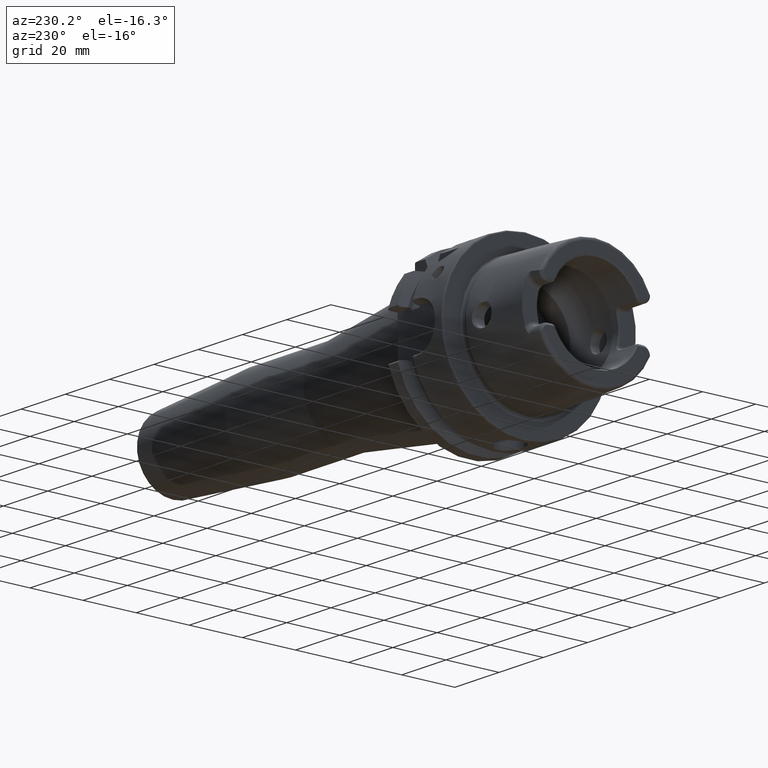
[diagram: clean part render]
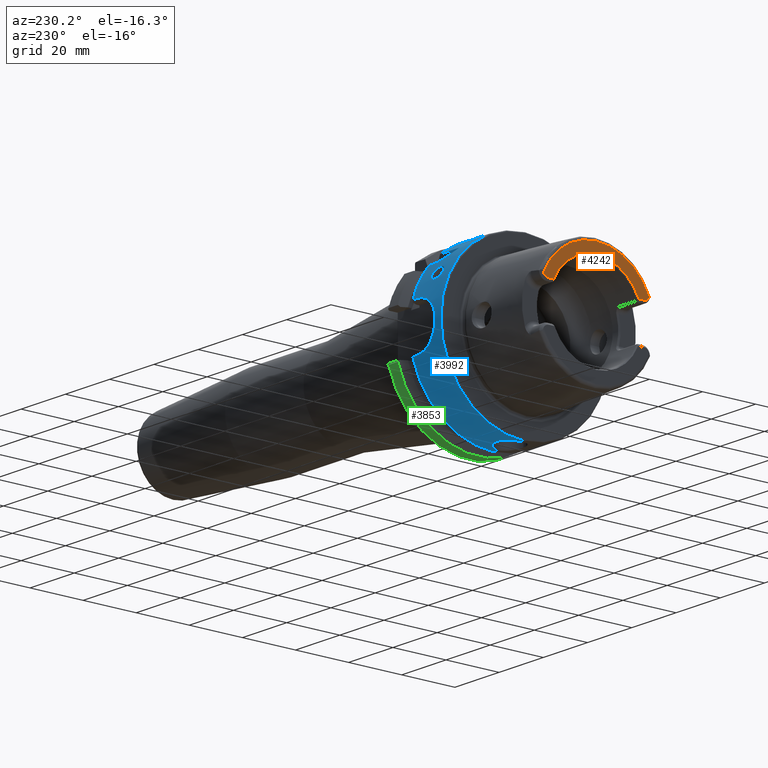
[diagram: same view with three faces highlighted in distinct colors, each labeled with its STEP entity id]
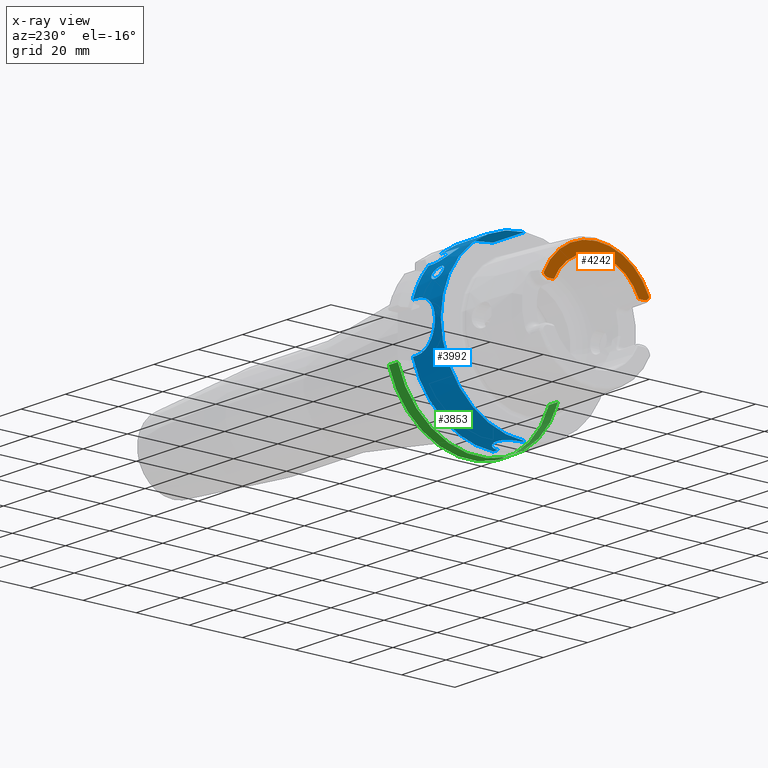
[diagram: x-ray of the same camera — body ghosted, the three highlighted faces saturated]
A machine part, auxiliary view with three faces highlighted in distinct colors.
The next image is the same camera in x-ray (body ghosted, the three faces saturated) — at least one of them is partly hidden behind the body in this view.
Their STEP definitions:

[orange] entity #4242 — the highlighted planar face has unit normal (1, 0, 0).
#1250=DIRECTION('',(0.E0,1.E0,0.E0));
#1251=VECTOR('',#1250,1.981717768605E0);
#1252=CARTESIAN_POINT('',(-3.2E1,1.600828223140E1,7.07E0));
#1253=LINE('',#1252,#1251);
#1254=CARTESIAN_POINT('',(-3.2E1,1.799E1,9.15E0));
#1255=DIRECTION('',(1.E0,0.E0,0.E0));
#1256=DIRECTION('',(0.E0,0.E0,-1.E0));
#1257=AXIS2_PLACEMENT_3D('',#1254,#1255,#1256);
#1259=CARTESIAN_POINT('',(-3.2E1,-1.799E1,9.15E0));
#1260=DIRECTION('',(-1.E0,0.E0,0.E0));
#1261=DIRECTION('',(0.E0,0.E0,-1.E0));
#1262=AXIS2_PLACEMENT_3D('',#1259,#1260,#1261);
#1264=DIRECTION('',(0.E0,-1.E0,0.E0));
#1265=VECTOR('',#1264,1.981717768605E0);
#1266=CARTESIAN_POINT('',(-3.2E1,-1.600828223140E1,7.07E0));
#1267=LINE('',#1266,#1265);
#1391=CARTESIAN_POINT('',(-3.2E1,0.E0,0.E0));
#1392=DIRECTION('',(-1.E0,0.E0,0.E0));
#1393=DIRECTION('',(0.E0,-9.224287428258E-1,3.861673399044E-1));
#1394=AXIS2_PLACEMENT_3D('',#1391,#1392,#1393);
#1626=CARTESIAN_POINT('',(-3.2E1,0.E0,-7.105427357601E-14));
#1627=DIRECTION('',(1.E0,0.E0,0.E0));
#1628=DIRECTION('',(0.E0,9.147589846511E-1,4.04E-1));
#1629=AXIS2_PLACEMENT_3D('',#1626,#1627,#1628);
#2786=CARTESIAN_POINT('',(-3.2E1,-1.600828223140E1,7.07E0));
#2787=CARTESIAN_POINT('',(-3.2E1,-1.799E1,7.07E0));
#2788=VERTEX_POINT('',#2786);
#2789=VERTEX_POINT('',#2787);
#2790=CARTESIAN_POINT('',(-3.2E1,-1.990238974402E1,8.331974653830E0));
#2791=VERTEX_POINT('',#2790);
#2815=CARTESIAN_POINT('',(-3.2E1,1.799E1,7.07E0));
#2817=VERTEX_POINT('',#2815);
#2822=CARTESIAN_POINT('',(-3.2E1,1.600828223140E1,7.07E0));
#2823=VERTEX_POINT('',#2822);
#2824=CARTESIAN_POINT('',(-3.2E1,1.990238974402E1,8.331974653830E0));
#2825=VERTEX_POINT('',#2824);
#4223=CARTESIAN_POINT('',(-3.2E1,0.E0,0.E0));
#4224=DIRECTION('',(1.E0,0.E0,0.E0));
#4225=DIRECTION('',(0.E0,0.E0,1.E0));
#4226=AXIS2_PLACEMENT_3D('',#4223,#4224,#4225);
#4227=PLANE('',#4226);
#4229=ORIENTED_EDGE('',*,*,#4228,.T.);
#4231=ORIENTED_EDGE('',*,*,#4230,.T.);
#4233=ORIENTED_EDGE('',*,*,#4232,.F.);
#4235=ORIENTED_EDGE('',*,*,#4234,.F.);
#4237=ORIENTED_EDGE('',*,*,#4236,.F.);
#4239=ORIENTED_EDGE('',*,*,#4238,.F.);
#4240=EDGE_LOOP('',(#4229,#4231,#4233,#4235,#4237,#4239));
#4241=FACE_OUTER_BOUND('',#4240,.F.);
#4242=ADVANCED_FACE('',(#4241),#4227,.F.);
#1258=CIRCLE('',#1257,2.08E0);
#1263=CIRCLE('',#1262,2.08E0);
#1395=CIRCLE('',#1394,2.157607283902E1);
#1630=CIRCLE('',#1629,1.75E1);
#4228=EDGE_CURVE('',#2823,#2817,#1253,.T.);
#4230=EDGE_CURVE('',#2817,#2825,#1258,.T.);
#4232=EDGE_CURVE('',#2791,#2825,#1395,.T.);
#4234=EDGE_CURVE('',#2789,#2791,#1263,.T.);
#4236=EDGE_CURVE('',#2788,#2789,#1267,.T.);
#4238=EDGE_CURVE('',#2823,#2788,#1630,.T.);

[blue] entity #3992 — the highlighted cylindrical surface (partial cylindrical patch) has radius 31.5 mm, axis along (1, 0, 0).
#747=DIRECTION('',(-1.E0,-1.152697855394E-12,0.E0));
#748=VECTOR('',#747,1.412250090457E1);
#749=CARTESIAN_POINT('',(1.462250090457E1,0.E0,3.15E1));
#750=LINE('',#749,#748);
#806=DIRECTION('',(-1.E0,0.E0,0.E0));
#807=VECTOR('',#806,2.122500904567E0);
#808=CARTESIAN_POINT('',(1.462250090457E1,0.E0,-3.15E1));
#809=LINE('',#808,#807);
#830=DIRECTION('',(-1.E0,-3.500326402276E-12,0.E0));
#831=VECTOR('',#830,1.E0);
#832=CARTESIAN_POINT('',(1.5E0,0.E0,-3.15E1));
#833=LINE('',#832,#831);
#847=CARTESIAN_POINT('',(5.E-1,0.E0,0.E0));
#848=DIRECTION('',(-1.E0,0.E0,0.E0));
#849=DIRECTION('',(0.E0,0.E0,1.E0));
#850=AXIS2_PLACEMENT_3D('',#847,#848,#849);
#852=CARTESIAN_POINT('',(1.25E1,0.E0,-3.15E1));
#853=CARTESIAN_POINT('',(1.25E1,3.591179016958E-1,-3.15E1));
#854=CARTESIAN_POINT('',(1.241877060514E1,1.049176716839E0,-3.148780969961E1));
#855=CARTESIAN_POINT('',(1.208888151745E1,2.007789554012E0,-3.144033464909E1));
#856=CARTESIAN_POINT('',(1.158303499725E1,2.863034778919E0,-3.137310892711E1));
#857=CARTESIAN_POINT('',(1.090471174494E1,3.623449915998E0,-3.129357789396E1));
#858=CARTESIAN_POINT('',(1.006459553458E1,4.261252464667E0,-3.121215533395E1));
#859=CARTESIAN_POINT('',(9.088026015445E0,4.740243014212E0,-3.114207085875E1));
#860=CARTESIAN_POINT('',(8.055144265708E0,5.024239826024E0,-3.109689332850E1));
#861=CARTESIAN_POINT('',(6.991255526220E0,5.118492193282E0,-3.108133183436E1));
#862=CARTESIAN_POINT('',(5.929304176130E0,5.021338939589E0,-3.109736870211E1));
#863=CARTESIAN_POINT('',(4.897654838810E0,4.734729497616E0,-3.114291627253E1));
#864=CARTESIAN_POINT('',(3.923322314250E0,4.253904907756E0,-3.121317796639E1));
#865=CARTESIAN_POINT('',(3.081999010349E0,3.611475324829E0,-3.129499592086E1));
#866=CARTESIAN_POINT('',(2.405524185626E0,2.847462453288E0,-3.137455446046E1));
#867=CARTESIAN_POINT('',(1.903178736620E0,1.990202842849E0,-3.144144823364E1));
#868=CARTESIAN_POINT('',(1.578888425808E0,1.035924841317E0,-3.148816306394E1));
#869=CARTESIAN_POINT('',(1.5E0,3.538898695661E-1,-3.15E1));
#870=CARTESIAN_POINT('',(1.5E0,0.E0,-3.15E1));
#872=CARTESIAN_POINT('',(1.462250090457E1,0.E0,0.E0));
#873=DIRECTION('',(1.E0,0.E0,0.E0));
#874=DIRECTION('',(0.E0,0.E0,-1.E0));
#875=AXIS2_PLACEMENT_3D('',#872,#873,#874);
#877=DIRECTION('',(1.E0,0.E0,0.E0));
#878=VECTOR('',#877,1.622500904567E0);
#879=CARTESIAN_POINT('',(1.3E1,3.030257052423E1,-8.602570524226E0));
#880=LINE('',#879,#878);
#881=CARTESIAN_POINT('',(1.3E1,3.030257052423E1,-8.602570524226E0));
#882=CARTESIAN_POINT('',(1.235541835287E1,3.030257052423E1,-8.602570524226E0));
#883=CARTESIAN_POINT('',(1.109372968304E1,3.033423153458E1,-8.492196080456E0));
#884=CARTESIAN_POINT('',(9.248264611222E0,3.046933517118E1,-8.000909647176E0));
#885=CARTESIAN_POINT('',(7.555884268441E0,3.066964465669E1,-7.205952655409E0));
#886=CARTESIAN_POINT('',(6.088763746981E0,3.090017764345E1,-6.155508171550E0));
#887=CARTESIAN_POINT('',(4.907613818030E0,3.112281076593E1,-4.919449967846E0));
#888=CARTESIAN_POINT('',(4.035296228860E0,3.130752418742E1,-3.569140413675E0));
#889=CARTESIAN_POINT('',(3.467126615443E0,3.143679507039E1,-2.158791178254E0));
#890=CARTESIAN_POINT('',(3.188348549717E0,3.150274417315E1,-7.219689524247E-1));
#891=CARTESIAN_POINT('',(3.188351309952E0,3.150274350794E1,7.219960352426E-1));
#892=CARTESIAN_POINT('',(3.467133324851E0,3.143679352027E1,2.158810680109E0));
#893=CARTESIAN_POINT('',(4.035299491244E0,3.130752347964E1,3.569145798460E0));
#894=CARTESIAN_POINT('',(4.907619317801E0,3.112280964165E1,4.919457341111E0));
#895=CARTESIAN_POINT('',(6.088770538561E0,3.090017648968E1,6.155513669787E0));
#896=CARTESIAN_POINT('',(7.555887404237E0,3.066964426780E1,7.205954206590E0));
#897=CARTESIAN_POINT('',(9.248266760131E0,3.046933495101E1,8.000910488809E0));
#898=CARTESIAN_POINT('',(1.109373293521E1,3.033423138205E1,8.492196614850E0));
#899=CARTESIAN_POINT('',(1.235541965801E1,3.030257052423E1,8.602570524226E0));
#900=CARTESIAN_POINT('',(1.3E1,3.030257052423E1,8.602570524226E0));
#902=DIRECTION('',(1.E0,0.E0,0.E0));
#903=VECTOR('',#902,1.622500904567E0);
#904=CARTESIAN_POINT('',(1.3E1,3.030257052423E1,8.602570524226E0));
#905=LINE('',#904,#903);
#906=CARTESIAN_POINT('',(1.462250090457E1,0.E0,0.E0));
#907=DIRECTION('',(1.E0,0.E0,0.E0));
#908=DIRECTION('',(0.E0,9.619863658485E-1,2.730974769596E-1));
#909=AXIS2_PLACEMENT_3D('',#906,#907,#908);
#911=DIRECTION('',(1.E0,0.E0,0.E0));
#912=VECTOR('',#911,1.622500904567E0);
#913=CARTESIAN_POINT('',(1.3E1,2.433618704728E1,2.E1));
#914=LINE('',#913,#912);
#915=CARTESIAN_POINT('',(5.888286096344E0,2.E1,2.433618704728E1));
#916=CARTESIAN_POINT('',(5.979841110901E0,2.021624479285E1,2.415847244274E1));
#917=CARTESIAN_POINT('',(6.178964055433E0,2.063505528873E1,2.380463264103E1));
#918=CARTESIAN_POINT('',(6.529290349012E0,2.122336114799E1,2.328123619400E1));
#919=CARTESIAN_POINT('',(6.934185786704E0,2.177041926319E1,2.277004743860E1));
#920=CARTESIAN_POINT('',(7.395470581921E0,2.227363444044E1,2.227755184076E1));
#921=CARTESIAN_POINT('',(7.915511267172E0,2.273117164906E1,2.180996325233E1));
#922=CARTESIAN_POINT('',(8.494651142790E0,2.313957745525E1,2.137559509570E1));
#923=CARTESIAN_POINT('',(9.133373456560E0,2.349590004479E1,2.098269866103E1));
#924=CARTESIAN_POINT('',(9.827602999986E0,2.379530983774E1,2.064193255373E1));
#925=CARTESIAN_POINT('',(1.057250362730E1,2.403390563889E1,2.036307977068E1));
#926=CARTESIAN_POINT('',(1.135757184338E1,2.420737036833E1,2.015610491514E1));
#927=CARTESIAN_POINT('',(1.217313527813E1,2.431273139834E1,2.002859294578E1));
#928=CARTESIAN_POINT('',(1.272260838370E1,2.433618704728E1,2.E1));
#929=CARTESIAN_POINT('',(1.3E1,2.433618704728E1,2.E1));
#931=DIRECTION('',(1.E0,0.E0,0.E0));
#932=VECTOR('',#931,8.734214808223E0);
#933=CARTESIAN_POINT('',(5.888286096344E0,2.E1,2.433618704728E1));
#934=LINE('',#933,#932);
#935=CARTESIAN_POINT('',(1.462250090457E1,0.E0,0.E0));
#936=DIRECTION('',(1.E0,0.E0,0.E0));
#937=DIRECTION('',(0.E0,6.349206349206E-1,7.725773665802E-1));
#938=AXIS2_PLACEMENT_3D('',#935,#936,#937);
#940=CARTESIAN_POINT('',(7.E0,1.048792601377E1,2.970275084785E1));
#941=CARTESIAN_POINT('',(6.802284525844E0,1.048792601377E1,2.970275084785E1));
#942=CARTESIAN_POINT('',(6.415956362855E0,1.053000828392E1,2.968795788573E1));
#943=CARTESIAN_POINT('',(5.835520236530E0,1.073329285939E1,2.961539446600E1));
#944=CARTESIAN_POINT('',(5.338865174867E0,1.105313070426E1,2.949799642861E1));
#945=CARTESIAN_POINT('',(4.933147778579E0,1.147607742680E1,2.933648695426E1));
#946=CARTESIAN_POINT('',(4.650970895156E0,1.196336414671E1,2.914163101280E1));
#947=CARTESIAN_POINT('',(4.497318778306E0,1.251103674698E1,2.891098269294E1));
#948=CARTESIAN_POINT('',(4.489867977867E0,1.306055214852E1,2.866698467963E1));
#949=CARTESIAN_POINT('',(4.632528901150E0,1.361030093004E1,2.840989978286E1));
#950=CARTESIAN_POINT('',(4.911239559409E0,1.409536526788E1,2.817188938195E1));
#951=CARTESIAN_POINT('',(5.318335564972E0,1.450994163974E1,2.796011300701E1));
#952=CARTESIAN_POINT('',(5.817706515600E0,1.481904178764E1,2.779698994859E1));
#953=CARTESIAN_POINT('',(6.407436795489E0,1.501546414401E1,2.769101327978E1));
#954=CARTESIAN_POINT('',(6.799276851427E0,1.505565330198E1,2.766906763247E1));
#955=CARTESIAN_POINT('',(7.E0,1.505565330198E1,2.766906763247E1));
#957=CARTESIAN_POINT('',(7.E0,1.505565330198E1,2.766906763247E1));
#958=CARTESIAN_POINT('',(7.216758209596E0,1.505565330198E1,2.766906763247E1));
#959=CARTESIAN_POINT('',(7.638088338046E0,1.500779870639E1,2.769518275357E1));
#960=CARTESIAN_POINT('',(8.254145299815E0,1.478880460707E1,2.781326796640E1));
#961=CARTESIAN_POINT('',(8.792406388011E0,1.442264801340E1,2.800557112396E1));
#962=CARTESIAN_POINT('',(9.190984559259E0,1.395502564772E1,2.824208031562E1));
#963=CARTESIAN_POINT('',(9.442403111712E0,1.340849415034E1,2.850610422381E1));
#964=CARTESIAN_POINT('',(9.528471297477E0,1.281403684970E1,2.877838375227E1));
#965=CARTESIAN_POINT('',(9.443708466172E0,1.221757970337E1,2.903644683210E1));
#966=CARTESIAN_POINT('',(9.193934997278E0,1.165486776358E1,2.926640933960E1));
#967=CARTESIAN_POINT('',(8.796093757839E0,1.116470616185E1,2.945632212539E1));
#968=CARTESIAN_POINT('',(8.254947878404E0,1.077379544614E1,2.960088540165E1));
#969=CARTESIAN_POINT('',(7.638227494305E0,1.053939599961E1,2.968464561730E1));
#970=CARTESIAN_POINT('',(7.216695711763E0,1.048792601377E1,2.970275084785E1));
#971=CARTESIAN_POINT('',(7.E0,1.048792601377E1,2.970275084785E1));
#973=CARTESIAN_POINT('',(7.E0,2.594374928177E1,1.786538197757E1));
#974=CARTESIAN_POINT('',(6.802284525844E0,2.594374928177E1,1.786538197757E1));
#975=CARTESIAN_POINT('',(6.415956362855E0,2.596909946851E1,1.782867888203E1));
#976=CARTESIAN_POINT('',(5.835520236530E0,2.609090843678E1,1.765048616683E1));
#977=CARTESIAN_POINT('',(5.338865174867E0,2.628065785371E1,1.736751319113E1));
#978=CARTESIAN_POINT('',(4.933147778579E0,2.652789605283E1,1.698824743562E1));
#979=CARTESIAN_POINT('',(4.650970895156E0,2.680758584166E1,1.654418571992E1));
#980=CARTESIAN_POINT('',(4.497318778306E0,2.711509060175E1,1.603567343191E1));
#981=CARTESIAN_POINT('',(4.489867977867E0,2.741623946645E1,1.551527784361E1));
#982=CARTESIAN_POINT('',(4.632528901150E0,2.770988486243E1,1.498415756688E1));
#983=CARTESIAN_POINT('',(4.911239559409E0,2.796241115156E1,1.450648944351E1));
#984=CARTESIAN_POINT('',(5.318335564972E0,2.817333145190E1,1.409147687985E1));
#985=CARTESIAN_POINT('',(5.817706515600E0,2.832751739645E1,1.377782304500E1));
#986=CARTESIAN_POINT('',(6.407436795489E0,2.842413489782E1,1.357663195463E1));
#987=CARTESIAN_POINT('',(6.799276851427E0,2.844374928177E1,1.353525495865E1));
#988=CARTESIAN_POINT('',(7.E0,2.844374928177E1,1.353525495865E1));
#990=CARTESIAN_POINT('',(7.E0,2.844374928177E1,1.353525495865E1));
#991=CARTESIAN_POINT('',(7.216758209596E0,2.844374928177E1,1.353525495865E1));
#992=CARTESIAN_POINT('',(7.638088338046E0,2.842038418372E1,1.358451076097E1));
#993=CARTESIAN_POINT('',(8.254145299815E0,2.831262298232E1,1.380876520685E1));
#994=CARTESIAN_POINT('',(8.792406388011E0,2.812942903542E1,1.417956317518E1));
#995=CARTESIAN_POINT('',(9.190984559259E0,2.789013120952E1,1.464576466074E1));
#996=CARTESIAN_POINT('',(9.442403111712E0,2.760316729966E1,1.518060764346E1));
#997=CARTESIAN_POINT('',(9.528471297477E0,2.728228313235E1,1.575029964364E1));
#998=CARTESIAN_POINT('',(9.443708466172E0,2.695142483705E1,1.630966577509E1));
#999=CARTESIAN_POINT('',(9.193934997278E0,2.663134988530E1,1.682646313122E1));
#1000=CARTESIAN_POINT('',(8.796093757839E0,2.634642875422E1,1.726821556311E1));
#1001=CARTESIAN_POINT('',(8.254947878404E0,2.611514750374E1,1.761494126403E1));
#1002=CARTESIAN_POINT('',(7.638227494305E0,2.597474738751E1,1.782048123975E1));
#1003=CARTESIAN_POINT('',(7.216695711763E0,2.594374928177E1,1.786538197757E1));
#1004=CARTESIAN_POINT('',(7.E0,2.594374928177E1,1.786538197757E1));
#2679=CARTESIAN_POINT('',(5.888286096344E0,2.E1,2.433618704728E1));
#2680=CARTESIAN_POINT('',(1.462250090457E1,2.E1,2.433618704728E1));
#2681=VERTEX_POINT('',#2679);
#2682=VERTEX_POINT('',#2680);
#2683=CARTESIAN_POINT('',(1.3E1,2.433618704728E1,2.E1));
#2684=CARTESIAN_POINT('',(1.462250090457E1,2.433618704728E1,2.E1));
#2685=VERTEX_POINT('',#2683);
#2686=VERTEX_POINT('',#2684);
#2699=CARTESIAN_POINT('',(1.462250090457E1,0.E0,3.15E1));
#2700=VERTEX_POINT('',#2699);
#2842=VERTEX_POINT('',#852);
#2843=VERTEX_POINT('',#870);
#2852=CARTESIAN_POINT('',(1.462250090457E1,0.E0,-3.15E1));
#2853=VERTEX_POINT('',#2852);
#2899=CARTESIAN_POINT('',(1.3E1,3.030257052423E1,8.602570524226E0));
#2900=CARTESIAN_POINT('',(1.462250090457E1,3.030257052423E1,8.602570524226E0));
#2901=VERTEX_POINT('',#2899);
#2902=VERTEX_POINT('',#2900);
#2903=VERTEX_POINT('',#881);
#2904=CARTESIAN_POINT('',(1.462250090457E1,3.030257052423E1,-8.602570524226E0));
#2905=VERTEX_POINT('',#2904);
#2924=CARTESIAN_POINT('',(5.E-1,0.E0,3.15E1));
#2925=CARTESIAN_POINT('',(5.E-1,0.E0,-3.15E1));
#2926=VERTEX_POINT('',#2924);
#2927=VERTEX_POINT('',#2925);
#2948=VERTEX_POINT('',#940);
#2949=VERTEX_POINT('',#955);
#2956=VERTEX_POINT('',#973);
#2957=VERTEX_POINT('',#988);
#3949=CARTESIAN_POINT('',(0.E0,0.E0,0.E0));
#3950=DIRECTION('',(1.E0,0.E0,0.E0));
#3951=DIRECTION('',(0.E0,0.E0,1.E0));
#3952=AXIS2_PLACEMENT_3D('',#3949,#3950,#3951);
#3953=CYLINDRICAL_SURFACE('',#3952,3.15E1);
#3955=ORIENTED_EDGE('',*,*,#3954,.T.);
#3956=ORIENTED_EDGE('',*,*,#3913,.F.);
#3958=ORIENTED_EDGE('',*,*,#3957,.F.);
#3959=ORIENTED_EDGE('',*,*,#3909,.F.);
#3961=ORIENTED_EDGE('',*,*,#3960,.T.);
#3962=ORIENTED_EDGE('',*,*,#3923,.F.);
#3964=ORIENTED_EDGE('',*,*,#3963,.T.);
#3966=ORIENTED_EDGE('',*,*,#3965,.T.);
#3968=ORIENTED_EDGE('',*,*,#3967,.T.);
#3970=ORIENTED_EDGE('',*,*,#3969,.F.);
#3972=ORIENTED_EDGE('',*,*,#3971,.F.);
#3974=ORIENTED_EDGE('',*,*,#3973,.T.);
#3976=ORIENTED_EDGE('',*,*,#3975,.T.);
#3977=ORIENTED_EDGE('',*,*,#3893,.T.);
#3978=EDGE_LOOP('',(#3955,#3956,#3958,#3959,#3961,#3962,#3964,#3966,#3968,#3970,
#3972,#3974,#3976,#3977));
#3979=FACE_OUTER_BOUND('',#3978,.F.);
#3981=ORIENTED_EDGE('',*,*,#3980,.F.);
#3983=ORIENTED_EDGE('',*,*,#3982,.F.);
#3984=EDGE_LOOP('',(#3981,#3983));
#3985=FACE_BOUND('',#3984,.F.);
#3987=ORIENTED_EDGE('',*,*,#3986,.F.);
#3989=ORIENTED_EDGE('',*,*,#3988,.F.);
#3990=EDGE_LOOP('',(#3987,#3989));
#3991=FACE_BOUND('',#3990,.F.);
#3992=ADVANCED_FACE('',(#3979,#3985,#3991),#3953,.T.);
#851=CIRCLE('',#850,3.15E1);
#871=B_SPLINE_CURVE_WITH_KNOTS('',3,(#852,#853,#854,#855,#856,#857,#858,#859,
#860,#861,#862,#863,#864,#865,#866,#867,#868,#869,#870),.UNSPECIFIED.,.F.,.F.,
(4,1,1,1,1,1,1,1,1,1,1,1,1,1,1,1,4),(0.E0,6.25E-2,1.25E-1,1.875E-1,2.5E-1,
3.125E-1,3.75E-1,4.375E-1,5.E-1,5.625E-1,6.25E-1,6.875E-1,7.5E-1,8.125E-1,
8.75E-1,9.375E-1,1.E0),.UNSPECIFIED.);
#876=CIRCLE('',#875,3.15E1);
#901=B_SPLINE_CURVE_WITH_KNOTS('',3,(#881,#882,#883,#884,#885,#886,#887,#888,
#889,#890,#891,#892,#893,#894,#895,#896,#897,#898,#899,#900),.UNSPECIFIED.,.F.,
.F.,(4,1,1,1,1,1,1,1,1,1,1,1,1,1,1,1,1,4),(0.E0,5.882352941176E-2,
1.176470588235E-1,1.764705882353E-1,2.352941176471E-1,2.941176470588E-1,
3.529411764706E-1,4.117647058824E-1,4.705882352941E-1,5.294117647059E-1,
5.882352941176E-1,6.470588235294E-1,7.058823529412E-1,7.647058823529E-1,
8.235294117647E-1,8.823529411765E-1,9.411764705882E-1,1.E0),.UNSPECIFIED.);
#910=CIRCLE('',#909,3.15E1);
#930=B_SPLINE_CURVE_WITH_KNOTS('',3,(#915,#916,#917,#918,#919,#920,#921,#922,
#923,#924,#925,#926,#927,#928,#929),.UNSPECIFIED.,.F.,.F.,(4,1,1,1,1,1,1,1,1,1,
1,1,4),(0.E0,8.333333333333E-2,1.666666666667E-1,2.5E-1,3.333333333333E-1,
4.166666666667E-1,5.E-1,5.833333333333E-1,6.666666666667E-1,7.5E-1,
8.333333333333E-1,9.166666666667E-1,1.E0),.UNSPECIFIED.);
#939=CIRCLE('',#938,3.15E1);
#956=B_SPLINE_CURVE_WITH_KNOTS('',3,(#940,#941,#942,#943,#944,#945,#946,#947,
#948,#949,#950,#951,#952,#953,#954,#955),.UNSPECIFIED.,.F.,.F.,(4,1,1,1,1,1,1,1,
1,1,1,1,1,4),(0.E0,7.692307692308E-2,1.538461538462E-1,2.307692307692E-1,
3.076923076923E-1,3.846153846154E-1,4.615384615385E-1,5.384615384615E-1,
6.153846153846E-1,6.923076923077E-1,7.692307692308E-1,8.461538461538E-1,
9.230769230769E-1,1.E0),.UNSPECIFIED.);
#972=B_SPLINE_CURVE_WITH_KNOTS('',3,(#957,#958,#959,#960,#961,#962,#963,#964,
#965,#966,#967,#968,#969,#970,#971),.UNSPECIFIED.,.F.,.F.,(4,1,1,1,1,1,1,1,1,1,
1,1,4),(0.E0,8.333333333333E-2,1.666666666667E-1,2.5E-1,3.333333333333E-1,
4.166666666667E-1,5.E-1,5.833333333333E-1,6.666666666667E-1,7.5E-1,
8.333333333333E-1,9.166666666667E-1,1.E0),.UNSPECIFIED.);
#989=B_SPLINE_CURVE_WITH_KNOTS('',3,(#973,#974,#975,#976,#977,#978,#979,#980,
#981,#982,#983,#984,#985,#986,#987,#988),.UNSPECIFIED.,.F.,.F.,(4,1,1,1,1,1,1,1,
1,1,1,1,1,4),(0.E0,7.692307692308E-2,1.538461538462E-1,2.307692307692E-1,
3.076923076923E-1,3.846153846154E-1,4.615384615385E-1,5.384615384615E-1,
6.153846153846E-1,6.923076923077E-1,7.692307692308E-1,8.461538461538E-1,
9.230769230769E-1,1.E0),.UNSPECIFIED.);
#1005=B_SPLINE_CURVE_WITH_KNOTS('',3,(#990,#991,#992,#993,#994,#995,#996,#997,
#998,#999,#1000,#1001,#1002,#1003,#1004),.UNSPECIFIED.,.F.,.F.,(4,1,1,1,1,1,1,1,
1,1,1,1,4),(0.E0,8.333333333333E-2,1.666666666667E-1,2.5E-1,3.333333333333E-1,
4.166666666667E-1,5.E-1,5.833333333333E-1,6.666666666667E-1,7.5E-1,
8.333333333333E-1,9.166666666667E-1,1.E0),.UNSPECIFIED.);
#3893=EDGE_CURVE('',#2700,#2926,#750,.T.);
#3909=EDGE_CURVE('',#2853,#2842,#809,.T.);
#3913=EDGE_CURVE('',#2843,#2927,#833,.T.);
#3923=EDGE_CURVE('',#2903,#2905,#880,.T.);
#3954=EDGE_CURVE('',#2926,#2927,#851,.T.);
#3957=EDGE_CURVE('',#2842,#2843,#871,.T.);
#3960=EDGE_CURVE('',#2853,#2905,#876,.T.);
#3963=EDGE_CURVE('',#2903,#2901,#901,.T.);
#3965=EDGE_CURVE('',#2901,#2902,#905,.T.);
#3967=EDGE_CURVE('',#2902,#2686,#910,.T.);
#3969=EDGE_CURVE('',#2685,#2686,#914,.T.);
#3971=EDGE_CURVE('',#2681,#2685,#930,.T.);
#3973=EDGE_CURVE('',#2681,#2682,#934,.T.);
#3975=EDGE_CURVE('',#2682,#2700,#939,.T.);
#3980=EDGE_CURVE('',#2948,#2949,#956,.T.);
#3982=EDGE_CURVE('',#2949,#2948,#972,.T.);
#3986=EDGE_CURVE('',#2956,#2957,#989,.T.);
#3988=EDGE_CURVE('',#2957,#2956,#1005,.T.);

[green] entity #3853 — the highlighted cylindrical surface (partial cylindrical patch) has radius 31.5 mm, axis along (1, 0, 0).
#708=CARTESIAN_POINT('',(2.55E1,0.E0,0.E0));
#709=DIRECTION('',(-1.E0,0.E0,0.E0));
#710=DIRECTION('',(0.E0,9.619863658485E-1,-2.730974769596E-1));
#711=AXIS2_PLACEMENT_3D('',#708,#709,#710);
#718=DIRECTION('',(1.E0,0.E0,1.034143222886E-14));
#719=VECTOR('',#718,4.122500945915E0);
#720=CARTESIAN_POINT('',(2.137749905409E1,3.030257052423E1,-8.602570524226E0));
#721=LINE('',#720,#719);
#722=DIRECTION('',(1.E0,0.E0,0.E0));
#723=VECTOR('',#722,4.122500945915E0);
#724=CARTESIAN_POINT('',(2.137749905409E1,-3.007314630073E1,-9.373146300730E0));
#725=LINE('',#724,#723);
#845=CARTESIAN_POINT('',(2.55E1,3.030257052423E1,-8.602570524226E0));
#2130=CARTESIAN_POINT('',(2.55E1,-3.007314630073E1,-9.373146300730E0));
#2218=CARTESIAN_POINT('',(2.137749905409E1,3.030257052423E1,-8.602570524226E0));
#2248=CARTESIAN_POINT('',(2.137749905409E1,-3.007314630073E1,
-9.373146300730E0));
#2250=CARTESIAN_POINT('',(2.137749905409E1,0.E0,0.E0));
#2251=DIRECTION('',(1.E0,0.E0,0.E0));
#2252=DIRECTION('',(0.E0,-9.547030571660E-1,-2.975602000232E-1));
#2253=AXIS2_PLACEMENT_3D('',#2250,#2251,#2252);
#2888=VERTEX_POINT('',#2248);
#2910=VERTEX_POINT('',#2218);
#2928=VERTEX_POINT('',#2130);
#2932=VERTEX_POINT('',#845);
#3839=CARTESIAN_POINT('',(0.E0,0.E0,0.E0));
#3840=DIRECTION('',(1.E0,0.E0,0.E0));
#3841=DIRECTION('',(0.E0,0.E0,1.E0));
#3842=AXIS2_PLACEMENT_3D('',#3839,#3840,#3841);
#3843=CYLINDRICAL_SURFACE('',#3842,3.15E1);
#3844=ORIENTED_EDGE('',*,*,#3827,.F.);
#3846=ORIENTED_EDGE('',*,*,#3845,.F.);
#3848=ORIENTED_EDGE('',*,*,#3847,.F.);
#3850=ORIENTED_EDGE('',*,*,#3849,.T.);
#3851=EDGE_LOOP('',(#3844,#3846,#3848,#3850));
#3852=FACE_OUTER_BOUND('',#3851,.F.);
#3853=ADVANCED_FACE('',(#3852),#3843,.T.);
#712=CIRCLE('',#711,3.15E1);
#2254=CIRCLE('',#2253,3.15E1);
#3827=EDGE_CURVE('',#2932,#2928,#712,.T.);
#3845=EDGE_CURVE('',#2910,#2932,#721,.T.);
#3847=EDGE_CURVE('',#2888,#2910,#2254,.T.);
#3849=EDGE_CURVE('',#2888,#2928,#725,.T.);